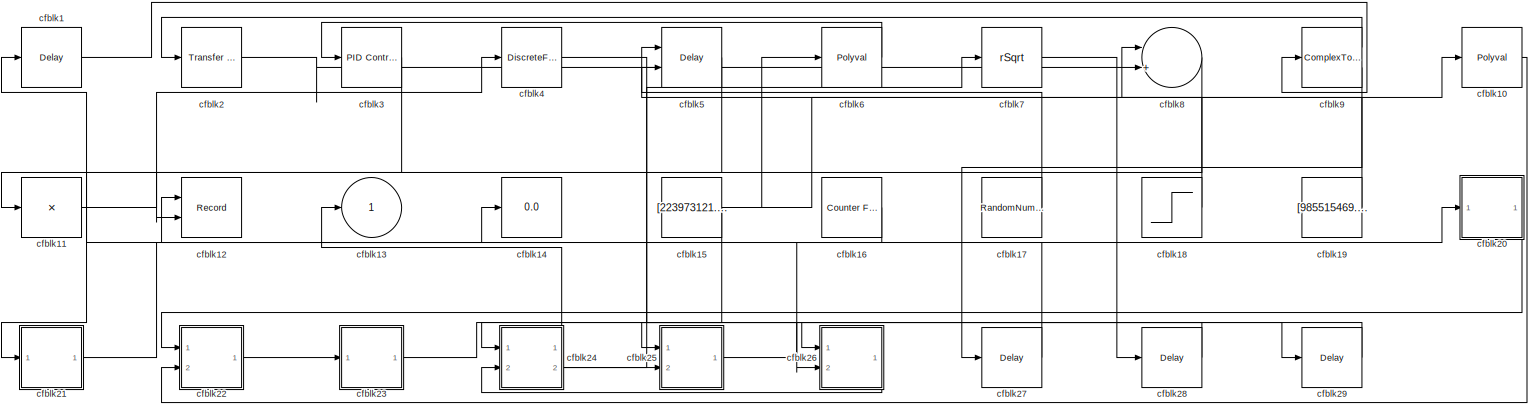
[diagram: root canvas - part 1/1, most of the canvas]
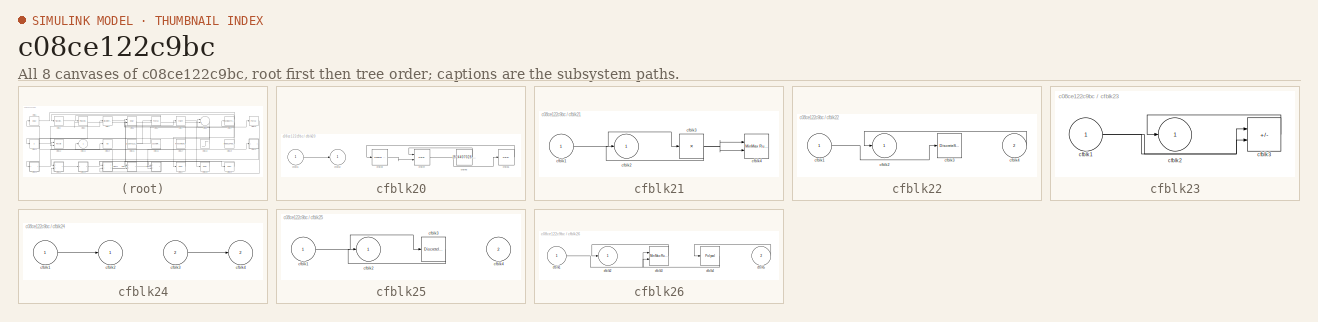
[diagram: thumbnail index - all 8 canvases of the model, root first then tree order]
MODEL slx_c08ce122c9bc
KIND model
CONFIG AbsTol = auto
CONFIG EnableMultiTasking = off
CONFIG FixedStep = auto
CONFIG MaxStep = auto
CONFIG MinStep = auto
CONFIG RelTol = 1e-3
CONFIG SampleTimeConstraint = Unconstrained
CONFIG SolverName = VariableStepAuto
CONFIG StartTime = 0.0
CONFIG StopTime = 10.0
BLOCK [Delay] cfblk1
  InputPortMap = u0
  Ports = [1, 1]
  SampleTime = 1
BLOCK [Polyval] cfblk10
  Coefs = [ +2.081618890e-019, -1.441693666e-014, +4.719686976e-010, -8.536869453e-006, +1.621573104e-001, -8.087801117e+001 ]
BLOCK [Product] cfblk11
  Inputs = *
  Ports = [1, 1]
BLOCK [Record] cfblk12
  CompatibilityTag = XY
  FileSettingsInternal = {"entries":[{"content":{"excelSettings":{"content":{},"type":"Streamout.ExcelSettings"}},"type":"Streamout.FileSettingStorage","uuid":"7024c3bf-7f11-4887-85ee-93702250b512"}],"packageUris":["http://schema.mathworks.com/mf0/streamout_blocks/R2020a"],"version":"1.0"}
  Layout = [1 1]
  Ports = [2]
  SignalsInternal = {"entries":[{"content":{"signals":[{"content":{"blockPath":["sampleModel127/cfblk12"],"channel":[],"dimensions":[1],"domain":"sampleModel127/cfblk12","lineColor":"#a2142f","plots":[1],"port":1,"sid":[""],"signalID":4470,"signalName":"cfblk16"},"type":"RecordBlkView.Signal","uuid":"529234e9-00a4-43e7-a067-70c9af3e3ba2"},{"content":{"blockPath":["sampleModel127/cfblk12"],"channel":[],"dimensions":[1...<+382ch>
  VisualizationBindings = {"xyplotplugin":{"info":[{"series":[{"bindingParametersList":[{"parameter":"X-Axis","signalID":4470,"signalName":"cfblk16"},{"parameter":"Y-Axis","signalID":4474,"signalName":"cfblk5"}],"seriesID":40513}],"subplotID":1}]}}
BLOCK [Outport] cfblk13
BLOCK [Display] cfblk14
  Decimation = 1
  Ports = [1]
BLOCK [Constant] cfblk15
  SampleTime = 1
  Value = [223973121.262640]
BLOCK [Reference] cfblk16  REF=simulink/Sources/Counter
Free-Running
  Ports = [0, 1]
  SourceBlock = simulink/Sources/Counter\nFree-Running
  SourceProductBaseCode = SL
  SourceType = Counter Free-Running
BLOCK [RandomNumber] cfblk17
  Mean = [16997.686069]
  SampleTime = 0.1
  Seed = [398324829.000000]
  Variance = [35356.770147]
BLOCK [Step] cfblk18
  After = [849369577.227583]
  Before = [350593096.515837]
  SampleTime = 0
  Time = [1.000000]
BLOCK [Constant] cfblk19
  SampleTime = 1
  Value = [985515469.004828]
BLOCK [Reference] cfblk2  REF=simulink/Discrete/Transfer Fcn
Lead or Lag
  Ports = [1, 1]
  SourceBlock = simulink/Discrete/Transfer Fcn\nLead or Lag
  SourceProductBaseCode = SL
  SourceType = Lead or Lag Compensator
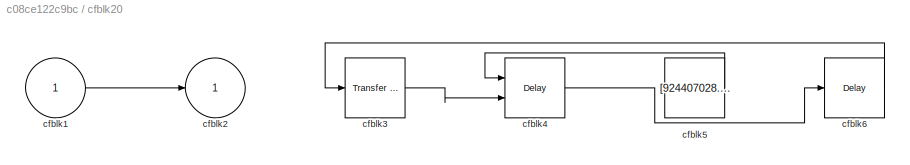
BLOCK [SubSystem] cfblk20
  Ports = [1, 1]
  RequestExecContextInheritance = off
BLOCK [Inport] cfblk20/cfblk1
BLOCK [Outport] cfblk20/cfblk2
BLOCK [Reference] cfblk20/cfblk3  REF=simulink/Discrete/Transfer Fcn
Real Zero
  Ports = [1, 1]
  SourceBlock = simulink/Discrete/Transfer Fcn\nReal Zero
  SourceProductBaseCode = SL
  SourceType = Transfer Fcn Real Zero
BLOCK [Delay] cfblk20/cfblk4
  DelayLengthSource = Input port
  InputPortMap = u0,p1
  Ports = [2, 1]
  SampleTime = 1
BLOCK [Constant] cfblk20/cfblk5
  SampleTime = 1
  Value = [924407028.907269]
BLOCK [Delay] cfblk20/cfblk6
  InputPortMap = u0
  Ports = [1, 1]
  SampleTime = 1
BLOCK [SubSystem] cfblk21
  Ports = [1, 1]
  RequestExecContextInheritance = off
BLOCK [Inport] cfblk21/cfblk1
BLOCK [Outport] cfblk21/cfblk2
BLOCK [Product] cfblk21/cfblk3
  Inputs = *
  Ports = [1, 1]
BLOCK [Reference] cfblk21/cfblk4  REF=simulink/Math
Operations/MinMax
Running
Resettable
  Ports = [2, 1]
  SourceBlock = simulink/Math\nOperations/MinMax\nRunning\nResettable
  SourceProductBaseCode = SL
  SourceType = MinMax Running Resettable
BLOCK [SubSystem] cfblk22
  Ports = [2, 1]
  RequestExecContextInheritance = off
BLOCK [Inport] cfblk22/cfblk1
BLOCK [Outport] cfblk22/cfblk2
BLOCK [DiscreteStateSpace] cfblk22/cfblk3
BLOCK [Inport] cfblk22/cfblk4
  Port = 2
BLOCK [SubSystem] cfblk23
  Ports = [1, 1]
  RequestExecContextInheritance = off
BLOCK [Inport] cfblk23/cfblk1
BLOCK [Outport] cfblk23/cfblk2
BLOCK [Sum] cfblk23/cfblk3
  IconShape = rectangular
  Inputs = --
  Ports = [2, 1]
BLOCK [SubSystem] cfblk24
  Ports = [2, 2]
  RequestExecContextInheritance = off
BLOCK [Inport] cfblk24/cfblk1
BLOCK [Outport] cfblk24/cfblk2
BLOCK [Inport] cfblk24/cfblk3
  Port = 2
BLOCK [Outport] cfblk24/cfblk4
  Port = 2
BLOCK [SubSystem] cfblk25
  Ports = [2, 1]
  RequestExecContextInheritance = off
BLOCK [Inport] cfblk25/cfblk1
BLOCK [Outport] cfblk25/cfblk2
BLOCK [DiscreteIntegrator] cfblk25/cfblk3
  ICPrevOutput = DiscIntNeverNeededParam
  ICPrevScaledInput = DiscIntNeverNeededParam
  InitialConditionSetting = Auto
  Ports = [1, 1]
BLOCK [Inport] cfblk25/cfblk4
  Port = 2
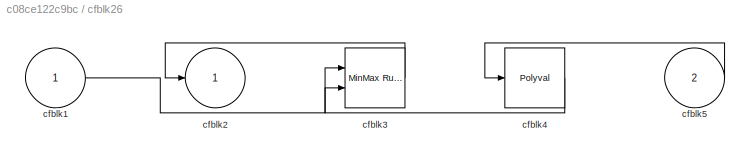
BLOCK [SubSystem] cfblk26
  Ports = [2, 1]
  RequestExecContextInheritance = off
BLOCK [Inport] cfblk26/cfblk1
BLOCK [Outport] cfblk26/cfblk2
BLOCK [Reference] cfblk26/cfblk3  REF=simulink/Math
Operations/MinMax
Running
Resettable
  Ports = [2, 1]
  SourceBlock = simulink/Math\nOperations/MinMax\nRunning\nResettable
  SourceProductBaseCode = SL
  SourceType = MinMax Running Resettable
BLOCK [Polyval] cfblk26/cfblk4
  Coefs = [ +2.081618890e-019, -1.441693666e-014, +4.719686976e-010, -8.536869453e-006, +1.621573104e-001, -8.087801117e+001 ]
BLOCK [Inport] cfblk26/cfblk5
  Port = 2
BLOCK [Delay] cfblk27
  InputPortMap = u0
  Ports = [1, 1]
  SampleTime = 1
BLOCK [Delay] cfblk28
  InputPortMap = u0
  Ports = [1, 1]
  SampleTime = 1
BLOCK [Delay] cfblk29
  InputPortMap = u0
  Ports = [1, 1]
  SampleTime = 1
BLOCK [Reference] cfblk3  REF=slpidlib/PID Controller
  Ports = [1, 1]
  SourceBlock = slpidlib/PID Controller
  SourceProductBaseCode = SL
  SourceType = PID 1dof
BLOCK [DiscreteFilter] cfblk4
  InputPortMap = u0
  Ports = [1, 1]
  SampleTime = 1
BLOCK [Delay] cfblk5
  InputPortMap = u0,e6
  Ports = [2, 1]
  SampleTime = 1
  ShowEnablePort = on
BLOCK [Polyval] cfblk6
  Coefs = [ +2.081618890e-019, -1.441693666e-014, +4.719686976e-010, -8.536869453e-006, +1.621573104e-001, -8.087801117e+001 ]
BLOCK [Sqrt] cfblk7
  AlgorithmType = Newton-Raphson
  Operator = rSqrt
BLOCK [Sum] cfblk8
  Inputs = |++
  Ports = [2, 1]
BLOCK [ComplexToRealImag] cfblk9
  Ports = [1, 2]
LINE cfblk10:1 -> cfblk22:2
LINE cfblk11:1 -> cfblk4:1
NET cfblk15:1 -> cfblk10:1, cfblk25:1, cfblk6:1
LINE cfblk16:1 -> cfblk12:1
LINE cfblk17:1 -> cfblk5:1
LINE cfblk18:1 -> cfblk5:2
LINE cfblk19:1 -> cfblk8:1
LINE cfblk1:1 -> cfblk9:1
LINE cfblk20/cfblk1:1 -> cfblk20/cfblk2:1
LINE cfblk20/cfblk3:1 -> cfblk20/cfblk4:2
LINE cfblk20/cfblk4:1 -> cfblk20/cfblk6:1
LINE cfblk20/cfblk5:1 -> cfblk20/cfblk4:1
LINE cfblk20/cfblk6:1 -> cfblk20/cfblk3:1
LINE cfblk20:1 -> cfblk22:1
LINE cfblk21/cfblk1:1 -> cfblk21/cfblk3:1
NET cfblk21/cfblk3:1 -> cfblk21/cfblk2:1, cfblk21/cfblk4:1, cfblk21/cfblk4:2
LINE cfblk21:1 -> cfblk14:1
LINE cfblk22/cfblk1:1 -> cfblk22/cfblk3:1
LINE cfblk22/cfblk4:1 -> cfblk22/cfblk2:1
LINE cfblk22:1 -> cfblk23:1
NET cfblk23/cfblk1:1 -> cfblk23/cfblk3:1, cfblk23/cfblk3:2
LINE cfblk23/cfblk3:1 -> cfblk23/cfblk2:1
LINE cfblk23:1 -> cfblk29:1
LINE cfblk24/cfblk1:1 -> cfblk24/cfblk2:1
LINE cfblk24/cfblk3:1 -> cfblk24/cfblk4:1
LINE cfblk24:1 -> cfblk13:1
NET cfblk24:2 -> cfblk25:2, cfblk7:1
LINE cfblk25/cfblk1:1 -> cfblk25/cfblk3:1
LINE cfblk25/cfblk3:1 -> cfblk25/cfblk2:1
LINE cfblk25:1 -> cfblk20:1
LINE cfblk26/cfblk1:1 -> cfblk26/cfblk3:2
LINE cfblk26/cfblk3:1 -> cfblk26/cfblk2:1
LINE cfblk26/cfblk4:1 -> cfblk26/cfblk3:1
LINE cfblk26/cfblk5:1 -> cfblk26/cfblk4:1
LINE cfblk26:1 -> cfblk24:2
LINE cfblk27:1 -> cfblk1:1
LINE cfblk28:1 -> cfblk24:1
LINE cfblk29:1 -> cfblk26:1
LINE cfblk2:1 -> cfblk8:2
LINE cfblk3:1 -> cfblk11:1
LINE cfblk4:1 -> cfblk26:2
LINE cfblk5:1 -> cfblk12:2
LINE cfblk6:1 -> cfblk3:1
LINE cfblk7:1 -> cfblk28:1
LINE cfblk8:1 -> cfblk21:1
LINE cfblk9:1 -> cfblk2:1
LINE cfblk9:2 -> cfblk27:1
note: NET lines group one-source signal fan-out (src -> all destinations, sorted); 1:1 wires keep LINE
